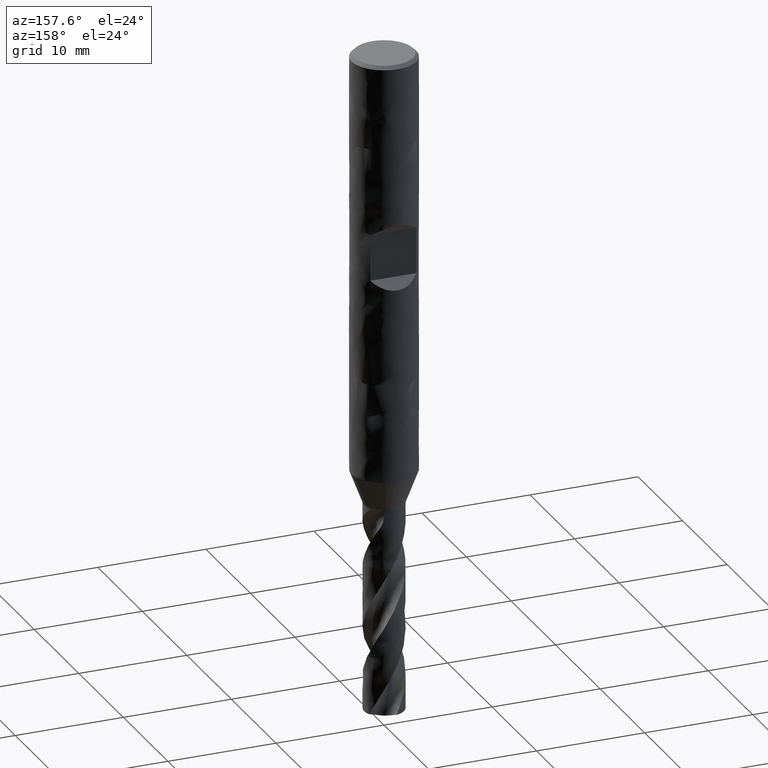
[diagram: clean part render]
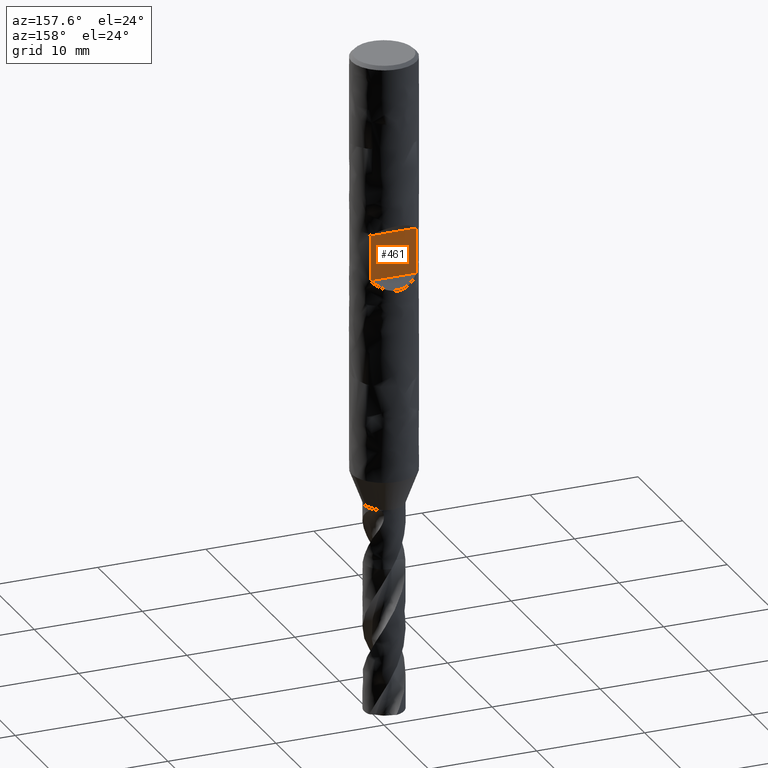
[diagram: same view with one face highlighted and labeled with its STEP entity id]
A machine part, auxiliary view. The second image highlights one B-rep face of the part: STEP entity #461.
In plain terms, the highlighted planar face has unit normal (0, 1, 0).
Its self-contained STEP definition (entity closure, byte-faithful):
#274 = EDGE_CURVE('', #275, #277, #279, .T.);
#275 = VERTEX_POINT('', #276);
#276 = CARTESIAN_POINT('', (2.14242852856286, 2.1, -15.9));
#277 = VERTEX_POINT('', #278);
#278 = CARTESIAN_POINT('', (2.14242852856286, 2.1, -20.1));
#279 = LINE('', #280, #281);
#280 = CARTESIAN_POINT('', (2.14242852856286, 2.1, -15.9));
#281 = VECTOR('', #282, 4.2);
#282 = DIRECTION('', (0., 4.44089209850063E-16, -4.2));
#285 = VERTEX_POINT('', #286);
#286 = CARTESIAN_POINT('', (-2.14242852856285, 2.1, -15.9));
#362 = EDGE_CURVE('', #285, #363, #365, .T.);
#363 = VERTEX_POINT('', #364);
#364 = CARTESIAN_POINT('', (-2.14242852856285, 2.1, -20.1));
#365 = LINE('', #366, #367);
#366 = CARTESIAN_POINT('', (-2.14242852856285, 2.1, -15.9));
#367 = VECTOR('', #368, 4.2);
#368 = DIRECTION('', (0., 0., -4.2));
#461 = ADVANCED_FACE('', (#462), #478, .T.);
#462 = FACE_OUTER_BOUND('', #463, .T.);
#463 = EDGE_LOOP('', (#464, #465, #471, #472));
#464 = ORIENTED_EDGE('', *, *, #274, .T.);
#465 = ORIENTED_EDGE('', *, *, #466, .T.);
#466 = EDGE_CURVE('', #277, #363, #467, .T.);
#467 = LINE('', #468, #469);
#468 = CARTESIAN_POINT('', (2.14242852856286, 2.1, -20.1));
#469 = VECTOR('', #470, 4.28485705712571);
#470 = DIRECTION('', (-4.28485705712571, 4.44089209850063E-16, 0.));
#471 = ORIENTED_EDGE('', *, *, #362, .F.);
#472 = ORIENTED_EDGE('', *, *, #473, .F.);
#473 = EDGE_CURVE('', #275, #285, #474, .T.);
#474 = LINE('', #475, #476);
#475 = CARTESIAN_POINT('', (2.14242852856286, 2.1, -15.9));
#476 = VECTOR('', #477, 4.28485705712571);
#477 = DIRECTION('', (-4.28485705712571, 4.44089209850063E-16, 0.));
#478 = PLANE('', #479);
#479 = AXIS2_PLACEMENT_3D('', #480, #481, #482);
#480 = CARTESIAN_POINT('', (3., 2.1, -20.1));
#481 = DIRECTION('', (0., 1., 1.05735526154777E-16));
#482 = DIRECTION('', (-1., 0., 0.));